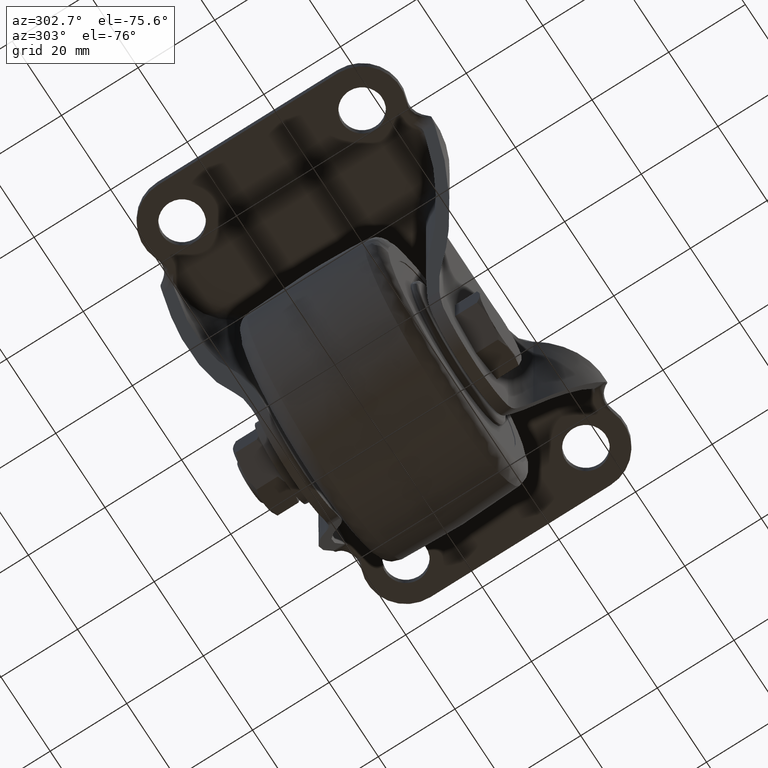
[diagram: clean part render]
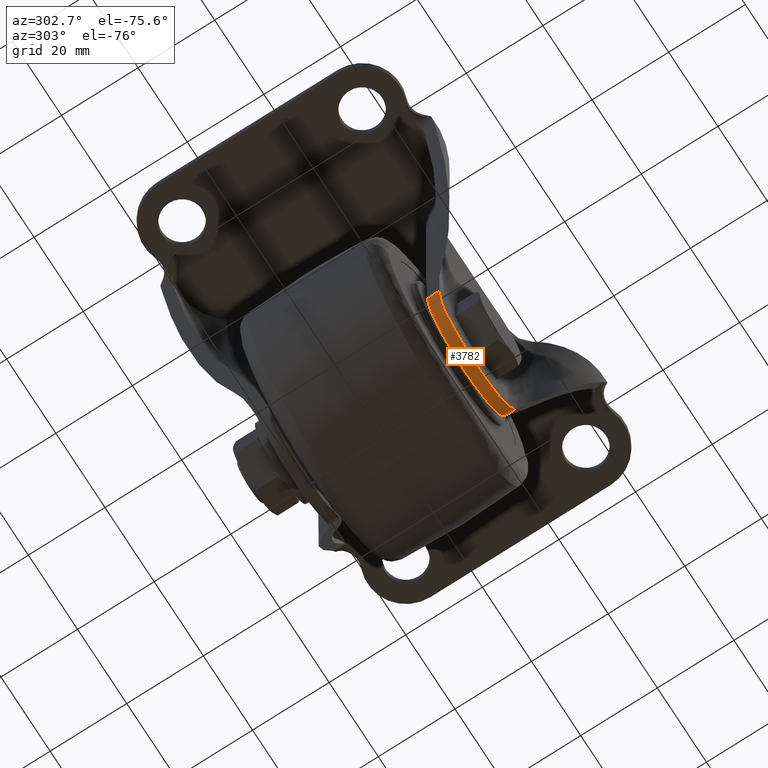
[diagram: same view with one face highlighted and labeled with its STEP entity id]
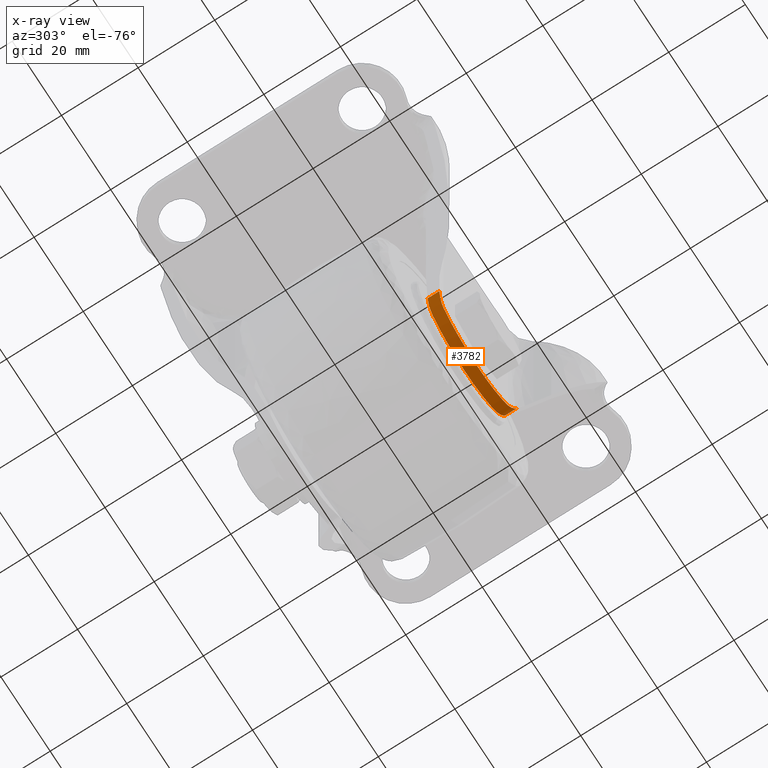
[diagram: x-ray of the same camera — body ghosted, the highlighted face saturated]
A machine part, auxiliary view. The second image highlights one B-rep face of the part: STEP entity #3782.
The next image is the same camera in x-ray: the body ghosted, the highlighted face saturated — about 0% of this face is hidden behind the body in this view.
In plain terms, the highlighted face is a freeform B-spline surface patch.
Its self-contained STEP definition (entity closure, byte-faithful):
#3633=CARTESIAN_POINT('',(15.947188881174970,-21.013083682625659,-66.835035131542298));
#3634=CARTESIAN_POINT('',(15.947188881174970,-24.665741920282141,-66.835035131542298));
#3635=CARTESIAN_POINT('',(12.667924025539563,-21.013083682625670,-79.182668039866741));
#3636=CARTESIAN_POINT('',(12.667924025539563,-24.665741920282134,-79.182668039866741));
#3637=CARTESIAN_POINT('',(-0.107469986759391,-21.013083682625659,-79.099455885357514));
#3638=CARTESIAN_POINT('',(-0.107469986759391,-24.665741920282141,-79.099455885357514));
#3639=CARTESIAN_POINT('',(-12.882863999058358,-21.013083682625670,-79.016243730848274));
#3640=CARTESIAN_POINT('',(-12.882863999058358,-24.665741920282134,-79.016243730848274));
#3641=CARTESIAN_POINT('',(-16.001005552615961,-21.013083682625659,-66.626941503357017));
#3642=CARTESIAN_POINT('',(-16.001005552615961,-24.665741920282141,-66.626941503357017));
#3650=(BOUNDED_SURFACE()B_SPLINE_SURFACE(1,2,((#3633,#3635,#3637,#3639,#3641),(#3634,#3636,#3638,#3640,#3642)),.UNSPECIFIED.,.F.,.F.,.U.)B_SPLINE_SURFACE_WITH_KNOTS((2,2),(3,2,3),(0.0,3.652658237656478),(0.0,22.564681826898131,45.129363653796247),.UNSPECIFIED.)GEOMETRIC_REPRESENTATION_ITEM()RATIONAL_B_SPLINE_SURFACE(((1.0,0.790689573743843,1.0,0.790689573743843,1.0),(1.0,0.790689573743843,1.0,0.790689573743843,1.0)))REPRESENTATION_ITEM('')SURFACE());
#3651=CARTESIAN_POINT('',(13.112529342704841,-21.100000000000001,-72.615372478840001));
#3652=VERTEX_POINT('',#3651);
#3653=CARTESIAN_POINT('',(15.788895217503899,-21.489058556165649,-67.391547508985795));
#3654=VERTEX_POINT('',#3653);
#3655=CARTESIAN_POINT('',(13.112529342704800,-21.100000000000001,-72.615372478839987));
#3656=CARTESIAN_POINT('',(13.262377682579061,-21.100000000000001,-72.419188794697448));
#3657=CARTESIAN_POINT('',(13.408182264475281,-21.103580292559009,-72.219176181642979));
#3658=CARTESIAN_POINT('',(13.620687496377720,-21.113477545811229,-71.913359515759140));
#3659=CARTESIAN_POINT('',(13.690562948580830,-21.117538128247290,-71.810337121695397));
#3660=CARTESIAN_POINT('',(13.827549460056209,-21.126982350587500,-71.603376034765247));
#3661=CARTESIAN_POINT('',(13.894727559515809,-21.132367323510909,-71.499346473165232));
#3662=CARTESIAN_POINT('',(14.224135809730280,-21.162208652223981,-70.976463162988836));
#3663=CARTESIAN_POINT('',(14.466970524330190,-21.195344305237079,-70.549420609718027));
#3664=CARTESIAN_POINT('',(14.912790391186601,-21.271230381579251,-69.677820661432634));
#3665=CARTESIAN_POINT('',(15.115770835520641,-21.314004683583459,-69.233263107492888));
#3666=CARTESIAN_POINT('',(15.482194059944909,-21.401638853088269,-68.326144136321290));
#3667=CARTESIAN_POINT('',(15.645637757706330,-21.446509242189720,-67.863584024807125));
#3668=CARTESIAN_POINT('',(15.788895217503921,-21.489058556165670,-67.391547508985795));
#3669=B_SPLINE_CURVE_WITH_KNOTS('',3,(#3655,#3656,#3657,#3658,#3659,#3660,#3661,#3662,#3663,#3664,#3665,#3666,#3667,#3668),.UNSPECIFIED.,.F.,.U.,(4,2,2,2,2,2,4),(0.0,0.124999999999994,0.187499999999991,0.249999999999988,0.499999999999992,0.749999999999996,1.0),.UNSPECIFIED.);
#3670=EDGE_CURVE('',#3652,#3654,#3669,.T.);
#3671=ORIENTED_EDGE('',*,*,#3670,.T.);
#3672=CARTESIAN_POINT('',(15.788895217503899,-24.576566392352198,-67.391547508985795));
#3673=VERTEX_POINT('',#3672);
#3674=CARTESIAN_POINT('',(15.788895217503899,-21.489058556165649,-67.391547508985795));
#3675=CARTESIAN_POINT('',(15.788895217503899,-24.576566392352198,-67.391547508985795));
#3676=QUASI_UNIFORM_CURVE('',1,(#3674,#3675),.UNSPECIFIED.,.F.,.U.);
#3677=EDGE_CURVE('',#3654,#3673,#3676,.T.);
#3678=ORIENTED_EDGE('',*,*,#3677,.T.);
#3679=CARTESIAN_POINT('',(13.112529000000640,-23.999999999999648,-72.615372927514002));
#3680=VERTEX_POINT('',#3679);
#3681=CARTESIAN_POINT('',(13.112529000000640,-23.999999999999648,-72.615372927514002));
#3682=CARTESIAN_POINT('',(13.187863853570390,-23.999999996028080,-72.516743419293974));
#3683=CARTESIAN_POINT('',(13.262215869515879,-24.001309295212039,-72.417093991248777));
#3684=CARTESIAN_POINT('',(13.408920880622400,-24.006346252758998,-72.215748706625263));
#3685=CARTESIAN_POINT('',(13.481241240812251,-24.010077148396942,-72.114088519579838));
#3686=CARTESIAN_POINT('',(13.693881770650920,-24.024490932074659,-71.807919695346229));
#3687=CARTESIAN_POINT('',(13.830344241214171,-24.038398676431751,-71.601601097226251));
#3688=CARTESIAN_POINT('',(14.224366297961581,-24.090318404322339,-70.975983953073708));
#3689=CARTESIAN_POINT('',(14.466604605985880,-24.138464899944061,-70.550039371634043));
#3690=CARTESIAN_POINT('',(14.911805262789690,-24.249779618983339,-69.679842970081879));
#3691=CARTESIAN_POINT('',(15.114762114710460,-24.312997303663771,-69.235594077345326));
#3692=CARTESIAN_POINT('',(15.389916219712200,-24.411240387248320,-68.554670149793722));
#3693=CARTESIAN_POINT('',(15.476743975226221,-24.444564276245469,-68.325266046356575));
#3694=CARTESIAN_POINT('',(15.640526879065540,-24.511090158525931,-67.861404224013810));
#3695=CARTESIAN_POINT('',(15.717526208667611,-24.544319963605041,-67.626709980219829));
#3696=CARTESIAN_POINT('',(15.788895217503910,-24.576566392352230,-67.391547508985809));
#3697=B_SPLINE_CURVE_WITH_KNOTS('',3,(#3681,#3682,#3683,#3684,#3685,#3686,#3687,#3688,#3689,#3690,#3691,#3692,#3693,#3694,#3695,#3696),.UNSPECIFIED.,.F.,.U.,(4,2,2,2,2,2,2,4),(0.0,0.062499999999997,0.124999999999995,0.249999999999996,0.499999999999997,0.749999999999998,0.874999999999999,1.0),.UNSPECIFIED.);
#3698=EDGE_CURVE('',#3680,#3673,#3697,.T.);
#3699=ORIENTED_EDGE('',*,*,#3698,.F.);
#3700=CARTESIAN_POINT('',(-13.112339000000080,-24.0,-72.615621673442291));
#3701=VERTEX_POINT('',#3700);
#3702=CARTESIAN_POINT('',(-13.112339000000080,-24.0,-72.615621673442291));
#3703=CARTESIAN_POINT('',(-12.417725831248200,-24.0,-73.525299456196322));
#3704=CARTESIAN_POINT('',(-11.083135146959631,-24.000000000000099,-74.939275140767862));
#3705=CARTESIAN_POINT('',(-8.890997289151644,-23.999999999999790,-76.566771862925293));
#3706=CARTESIAN_POINT('',(-6.906420154542095,-24.000000000000291,-77.638368338820328));
#3707=CARTESIAN_POINT('',(-4.503213310975804,-23.999999999999890,-78.549583937599280));
#3708=CARTESIAN_POINT('',(-1.860175539993448,-23.999999999999641,-79.087873210821115));
#3709=CARTESIAN_POINT('',(0.951082077568282,-24.000000000000050,-79.138166052318240));
#3710=CARTESIAN_POINT('',(3.303138813664660,-23.999999999999869,-78.815443455115485));
#3711=CARTESIAN_POINT('',(5.628320188742806,-24.000000000000089,-78.174216077863946));
#3712=CARTESIAN_POINT('',(7.657297217893557,-23.999999999999961,-77.277368959635155));
#3713=CARTESIAN_POINT('',(9.503498799746195,-24.000000000000082,-76.129712946015601));
#3714=CARTESIAN_POINT('',(11.304481615314980,-23.999999999999631,-74.710678862472818));
#3715=CARTESIAN_POINT('',(12.465797078637250,-24.000000000000750,-73.462294132649106));
#3716=CARTESIAN_POINT('',(13.112529000000640,-23.999999999999648,-72.615372927514002));
#3717=B_SPLINE_CURVE_WITH_KNOTS('',3,(#3702,#3703,#3704,#3705,#3706,#3707,#3708,#3709,#3710,#3711,#3712,#3713,#3714,#3715,#3716),.UNSPECIFIED.,.F.,.U.,(4,1,1,1,1,1,1,1,1,1,1,1,4),(0.000000103569533,3.433614908485872,5.801637265684818,8.169660874223364,10.182475154637670,13.497740385265439,16.220903356492130,18.588906306610241,20.601732532866549,23.443371116569079,25.219400504997900,27.113796305889348,30.310618016159300),.UNSPECIFIED.);
#3718=EDGE_CURVE('',#3701,#3680,#3717,.T.);
#3719=ORIENTED_EDGE('',*,*,#3718,.F.);
#3720=CARTESIAN_POINT('',(-15.788895217503800,-24.576652694973451,-67.391547508985795));
#3721=VERTEX_POINT('',#3720);
#3722=CARTESIAN_POINT('',(-15.788895217503780,-24.576652694973411,-67.391547508985795));
#3723=CARTESIAN_POINT('',(-15.646945704733540,-24.512510593436129,-67.859274310265619));
#3724=CARTESIAN_POINT('',(-15.484397594349391,-24.445139260336330,-68.320294547439175));
#3725=CARTESIAN_POINT('',(-15.209052479799260,-24.346684572946369,-69.002528938168084));
#3726=CARTESIAN_POINT('',(-15.112005847994620,-24.314306831152368,-69.228388550693822));
#3727=CARTESIAN_POINT('',(-14.958353459382691,-24.267416609727029,-69.564923901864447));
#3728=CARTESIAN_POINT('',(-14.905727716110579,-24.252050443507059,-69.676848949866411));
#3729=CARTESIAN_POINT('',(-14.798104277618410,-24.222157033039931,-69.899214564928826));
#3730=CARTESIAN_POINT('',(-14.743108711821931,-24.207628407997628,-70.009660056525675));
#3731=CARTESIAN_POINT('',(-14.462238239604570,-24.137500000281459,-70.558245359195169));
#3732=CARTESIAN_POINT('',(-14.218729190219600,-24.089391729402060,-70.985483586811014));
#3733=CARTESIAN_POINT('',(-13.694062595216700,-24.020679356555750,-71.817424880072949));
#3734=CARTESIAN_POINT('',(-13.412909399603340,-24.000000030394428,-72.222125920784350));
#3735=CARTESIAN_POINT('',(-13.112339000000089,-24.000000000000028,-72.615621673442291));
#3736=B_SPLINE_CURVE_WITH_KNOTS('',3,(#3722,#3723,#3724,#3725,#3726,#3727,#3728,#3729,#3730,#3731,#3732,#3733,#3734,#3735),.UNSPECIFIED.,.F.,.U.,(4,2,2,2,2,2,4),(0.0,0.250000000000005,0.375000000000008,0.437500000000006,0.500000000000004,0.750000000000002,1.0),.UNSPECIFIED.);
#3737=EDGE_CURVE('',#3721,#3701,#3736,.T.);
#3738=ORIENTED_EDGE('',*,*,#3737,.F.);
#3739=CARTESIAN_POINT('',(-15.788895217503800,-21.489115287832949,-67.391547508985795));
#3740=VERTEX_POINT('',#3739);
#3741=CARTESIAN_POINT('',(-15.788895217503800,-21.489115287832949,-67.391547508985795));
#3742=CARTESIAN_POINT('',(-15.788895217503800,-24.576652694973451,-67.391547508985795));
#3743=QUASI_UNIFORM_CURVE('',1,(#3741,#3742),.UNSPECIFIED.,.F.,.U.);
#3744=EDGE_CURVE('',#3740,#3721,#3743,.T.);
#3745=ORIENTED_EDGE('',*,*,#3744,.F.);
#3746=CARTESIAN_POINT('',(-13.112339000000080,-21.100000000000001,-72.615621673442291));
#3747=VERTEX_POINT('',#3746);
#3748=CARTESIAN_POINT('',(-15.788895217503780,-21.489115287832949,-67.391547508985795));
#3749=CARTESIAN_POINT('',(-15.646567848463841,-21.446838939811151,-67.860519355077130));
#3750=CARTESIAN_POINT('',(-15.483444733084101,-21.401992271575558,-68.323002572724377));
#3751=CARTESIAN_POINT('',(-15.207071438198570,-21.335881613931161,-69.007261584053367));
#3752=CARTESIAN_POINT('',(-15.109656179254120,-21.314046685112309,-69.233768177046869));
#3753=CARTESIAN_POINT('',(-14.904041579226000,-21.271738172562848,-69.683640309266977));
#3754=CARTESIAN_POINT('',(-14.795593991333330,-21.251229663551371,-69.907445025337026));
#3755=CARTESIAN_POINT('',(-14.457024012266810,-21.193860644170261,-70.567818324936383));
#3756=CARTESIAN_POINT('',(-14.213028016673080,-21.160964797679110,-70.995059157323695));
#3757=CARTESIAN_POINT('',(-13.689402295581941,-21.114048079024741,-71.824268346060364));
#3758=CARTESIAN_POINT('',(-13.409770642936410,-21.100000020797928,-72.226235065991858));
#3759=CARTESIAN_POINT('',(-13.112339000000089,-21.100000000000019,-72.615621673442305));
#3760=B_SPLINE_CURVE_WITH_KNOTS('',3,(#3748,#3749,#3750,#3751,#3752,#3753,#3754,#3755,#3756,#3757,#3758,#3759),.UNSPECIFIED.,.F.,.U.,(4,2,2,2,2,4),(0.0,0.249999999999997,0.374999999999995,0.499999999999994,0.749999999999997,1.0),.UNSPECIFIED.);
#3761=EDGE_CURVE('',#3740,#3747,#3760,.T.);
#3762=ORIENTED_EDGE('',*,*,#3761,.T.);
#3763=CARTESIAN_POINT('',(13.112529342704841,-21.100000000000001,-72.615372478840001));
#3764=CARTESIAN_POINT('',(12.489731987110099,-21.100000000000009,-73.430900525970529));
#3765=CARTESIAN_POINT('',(11.064456213265149,-21.100000000000001,-74.974350338080512));
#3766=CARTESIAN_POINT('',(8.766120630340964,-21.100000000000058,-76.667987044088449));
#3767=CARTESIAN_POINT('',(6.085649572747204,-21.100000000000009,-78.029689644525746));
#3768=CARTESIAN_POINT('',(3.540359164136226,-21.100000000000058,-78.801021438525439));
#3769=CARTESIAN_POINT('',(0.870936949103878,-21.099999999999859,-79.128093430291841));
#3770=CARTESIAN_POINT('',(-1.423775382002946,-21.100000000000140,-79.095203358815368));
#3771=CARTESIAN_POINT('',(-4.081006879310614,-21.100000000000069,-78.672349335435811));
#3772=CARTESIAN_POINT('',(-6.670231568303841,-21.100000000000620,-77.785254678574901));
#3773=CARTESIAN_POINT('',(-8.885968871772382,-21.099999999999898,-76.557642374933280));
#3774=CARTESIAN_POINT('',(-11.049676815966830,-21.100000000000200,-74.963326673465772));
#3775=CARTESIAN_POINT('',(-12.345920853917841,-21.099999999999689,-73.619455758415214));
#3776=CARTESIAN_POINT('',(-13.112339000000080,-21.100000000000001,-72.615621673442291));
#3777=B_SPLINE_CURVE_WITH_KNOTS('',3,(#3763,#3764,#3765,#3766,#3767,#3768,#3769,#3770,#3771,#3772,#3773,#3774,#3775,#3776),.UNSPECIFIED.,.F.,.U.,(4,1,1,1,1,1,1,1,1,1,1,4),(0.000000103521721,3.078417759956423,6.275235918425231,8.524865572279907,12.076921105529360,14.208149514513201,16.576105714945811,18.944113204273769,22.259356959450852,24.745780373744790,26.521814712978831,30.310618580746411),.UNSPECIFIED.);
#3778=EDGE_CURVE('',#3652,#3747,#3777,.T.);
#3779=ORIENTED_EDGE('',*,*,#3778,.F.);
#3780=EDGE_LOOP('',(#3671,#3678,#3699,#3719,#3738,#3745,#3762,#3779));
#3781=FACE_OUTER_BOUND('',#3780,.T.);
#3782=ADVANCED_FACE('',(#3781),#3650,.T.);